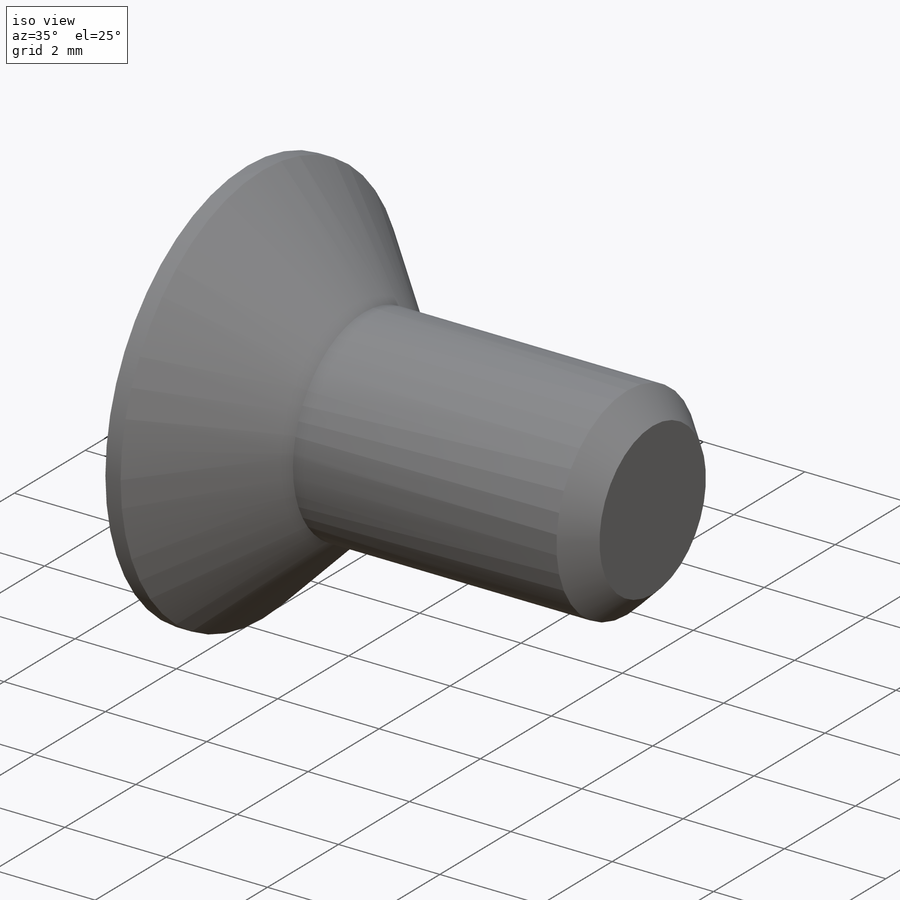
[diagram: iso view]
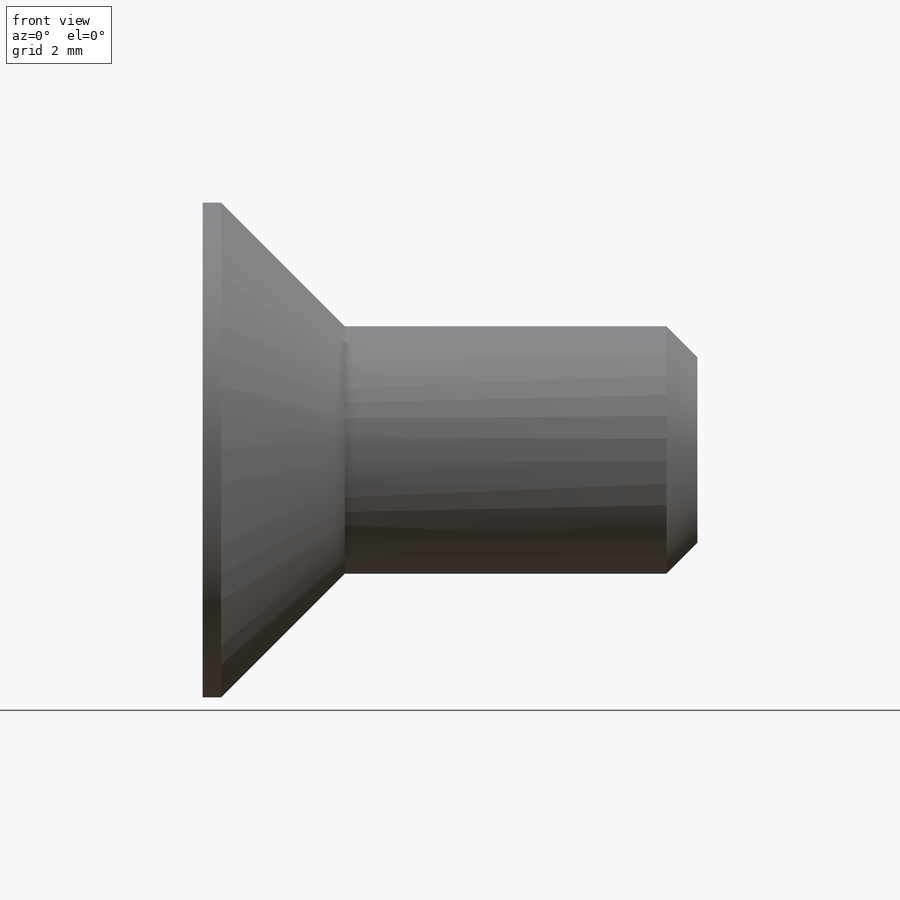
[diagram: front view]
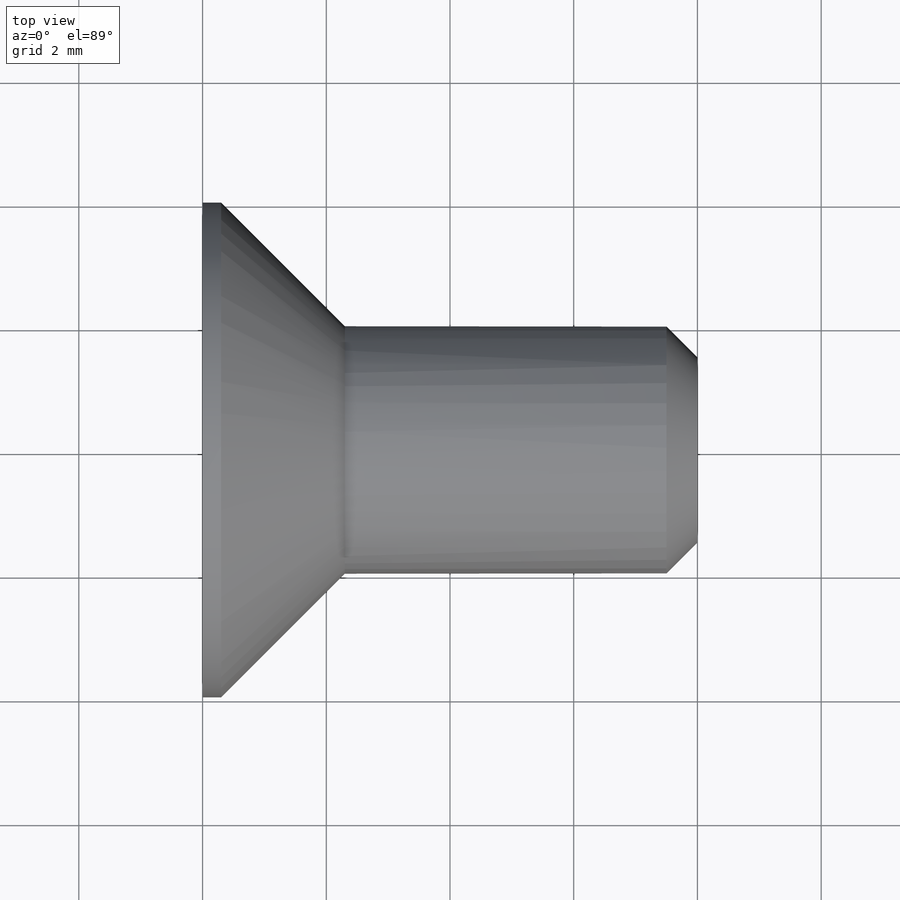
[diagram: top view]
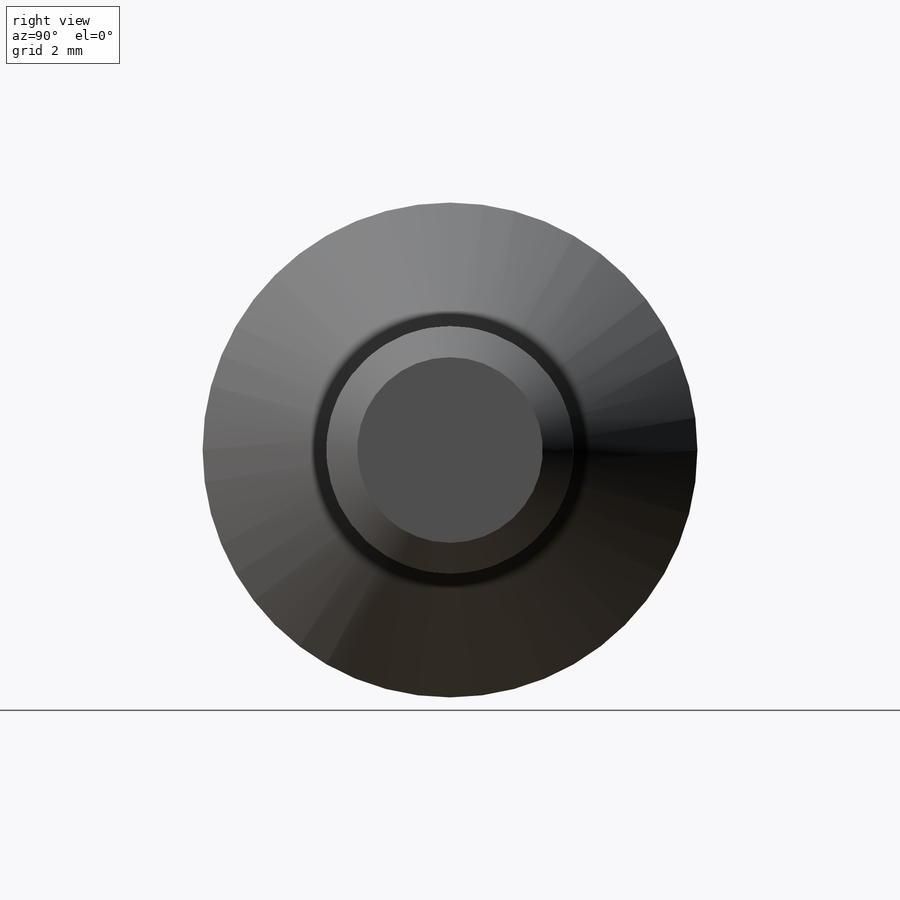
[diagram: right view]
SOLIDWORKS PART (.sldprt)
format: sldprt  version: not decoded by parser v0  size: 159,232 bytes
history: native  units: mm
features: plane x3, sketch x2, material x1, revolve x1, chamfer x1, cut_extrude x1 (+8 scaffold rows collapsed)
feature tree (17):
  scaffold x8  (default folders/planes/origin — collapsed)
  material  "Matériau <non spécifié>"
  plane  "Plan de face"
  plane  "Plan de dessus"
  plane  "Plan de droite"
  sketch  "Esquisse1"  dims[c1.D1=2.3mm c1.D2=8.0mm c1.D3=4.0mm c1.D4=~2.389219mm c1.D5=~22.185608mm c2.D5=45.0deg c2.D4=8.0mm]
  revolve  "Révolution1"  Angle=360deg
  chamfer  "Chanfrein1"  Distance=0.5mm Angle=45deg
  sketch  "Esquisse2"  dims[D1=2.5mm]
  cut_extrude  "Enlèv. mat.-Extru.1"  Depth=1.8mm
decode coverage: 5 of 5 modeling features carry decoded parameters
note: ~ marks probable driven/reference dimensions
note: suppression state not decoded; provenance and decode notes live in map.json
